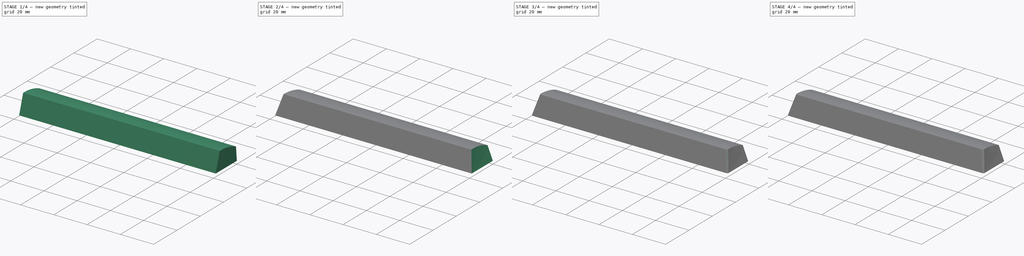
[diagram: build sequence overview — one tinted view per stage of 4, left to right]
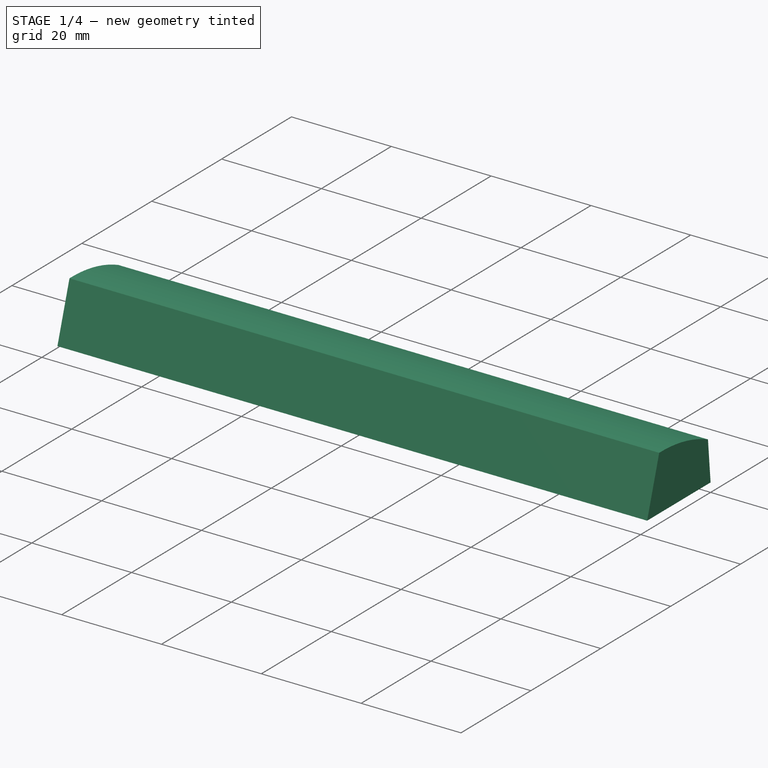
[diagram: stage 1 of 4 — iso view after this stage's code; geometry added in this stage tinted green]
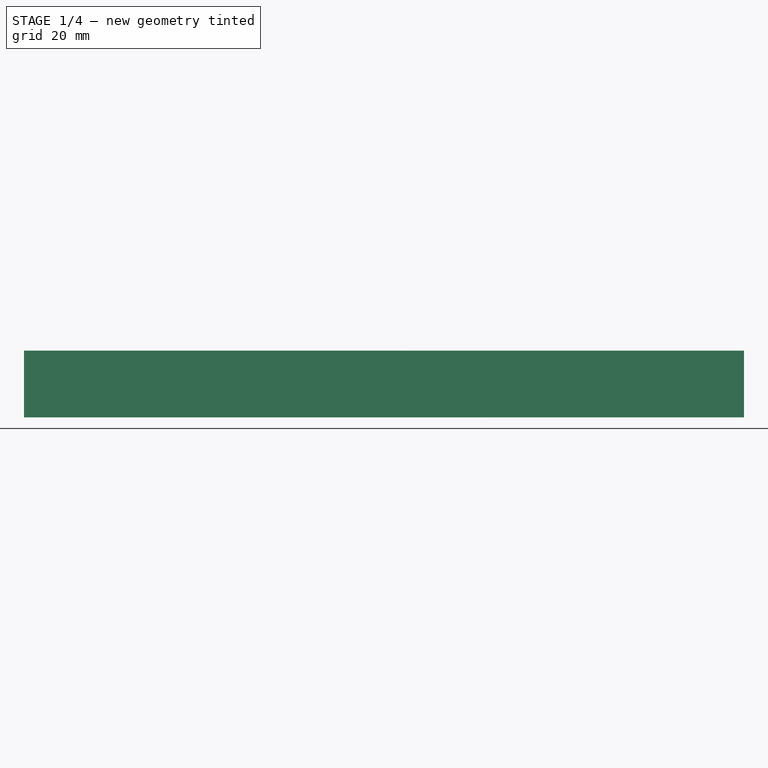
[diagram: stage 1 of 4 — front view after this stage's code; geometry added in this stage tinted green]
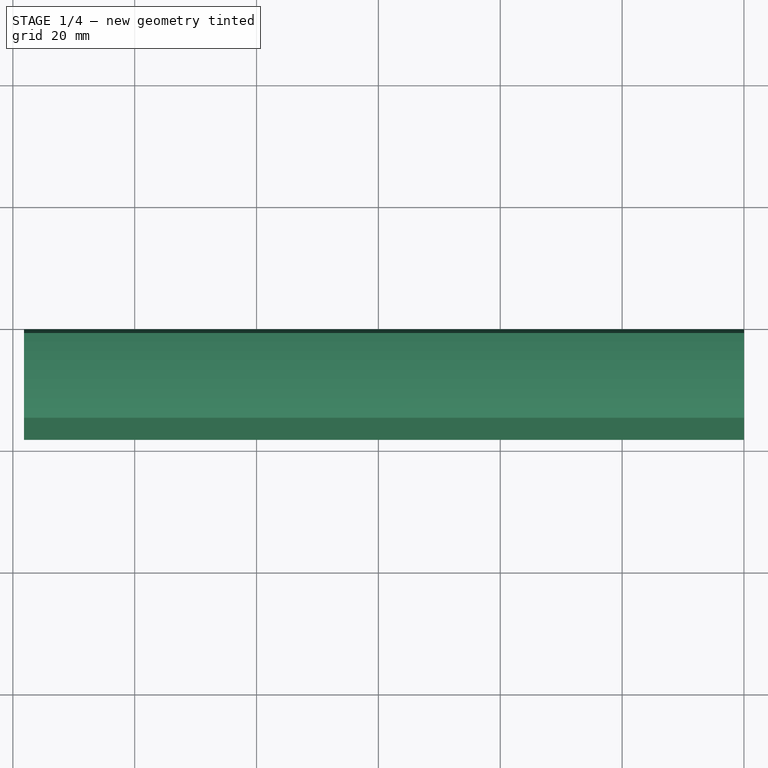
[diagram: stage 1 of 4 — top view after this stage's code; geometry added in this stage tinted green]
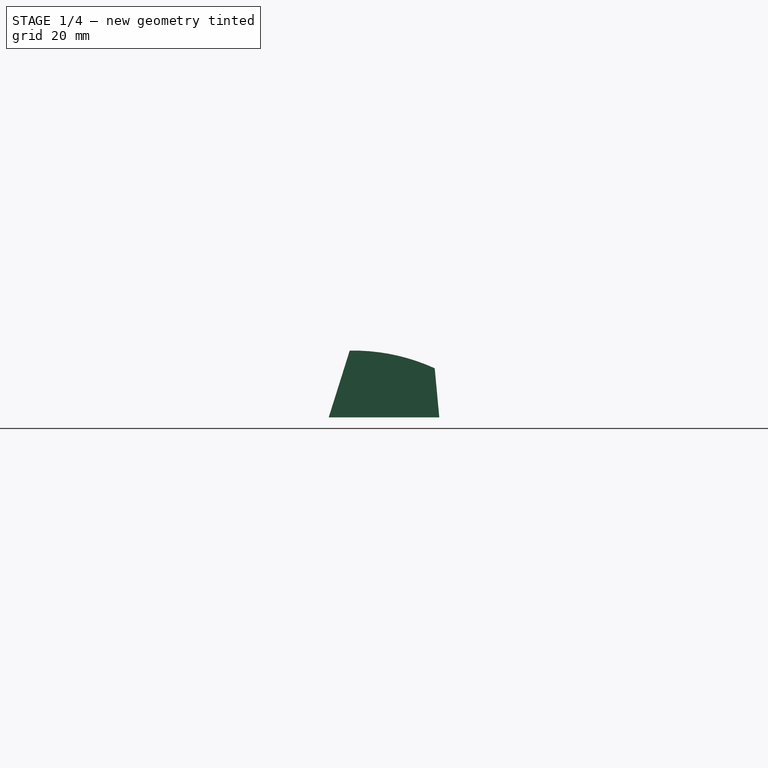
[diagram: stage 1 of 4 — right view after this stage's code; geometry added in this stage tinted green]
FCSTD DOCUMENT  (FreeCAD 1.1R20260325 (Git shallow))
Label: Caps-space-bar
License: Creative Commons Attribution 4.0
objects: Sketcher::SketchObject×7, PartDesign::Pad×5, Part::DatumPlane×5, Part::DatumLine×4, PartDesign::Fillet×2, App::Point×1, PartDesign::SubtractiveLoft×1, PartDesign::Thickness×1, PartDesign::Chamfer×1, PartDesign::Body×1
note: 45 computed .brp shape members not serialized (recipe doc carries the construction recipe); baked Part::Feature solids carry a one-line shape summary decoded from their .brp

FEATURE [App::Point] Origin001
  Role = Origin
FEATURE [Sketcher::SketchObject] Sketch
  ArcFitTolerance = 1e-06
  AttachmentSupport = -> [Origin]
  ExternalTypes = [0,0]
  FullyConstrained = true
  MakeInternals = false
  MapMode = 5
  Placement = pos=(0,0,0) rot=(0.57735,0.57735,0.57735;2.0944rad)
  _ExternalGeoVersion = 1
  sketch-geometry (4):
    g0: LineSegment StartX=0 StartY=0 StartZ=0 EndX=-0.75 EndY=8.0652 EndZ=0
    g1: LineSegment StartX=-0.75 StartY=8.0652 StartZ=0 EndX=-14.7007 EndY=10.9705 EndZ=0
    g2: LineSegment StartX=-14.7007 StartY=10.9705 StartZ=0 EndX=-18.15 EndY=0 EndZ=0
    g3: LineSegment StartX=-18.15 StartY=0 StartZ=0 EndX=0 EndY=0 EndZ=0
  constraints (11):
    c: Coincident(g-1,g0)
    c: Coincident(g0,g1)
    c: Coincident(g1,g2)
    c: PointOnObject(g2,g-1)
    c: Coincident(g2,g3)
    c: Coincident(g3,g0)
    c: Distance(g1,g1) = 14.25
    c: Distance(g2,g2) = 11.5
    c: DistanceX(g3,g3) = 18.15
    c: Distance(g0,g0) = 8.1
    c: DistanceX(g0,g0) = 0.75
FEATURE [PartDesign::Pad] Pad  label="Main pad"
  Direction = (1,0,0)
  Length = 118.162
  Length2 = 10
  Profile = -> Sketch
  ReferenceAxis = -> Sketch [N_Axis]
  Reversed = true
  SideType = 0
  Suppressed = false
  Type = 0
  Type2 = 0
  expr: Length = href(<<OEM>>.Widthmm)
FEATURE [Sketcher::SketchObject] Sketch002
  ArcFitTolerance = 1e-06
  AttachmentSupport = -> [Pad]
  ExternalGeometry = -> [Pad]
  ExternalTypes = [0,0]
  FullyConstrained = true
  MakeInternals = false
  MapMode = 5
  Placement = pos=(0,-16.5171,5.19327) rot=(1,0,0;1.26617rad)
  _ExternalGeoVersion = 1
  expr: Constraints[15] = href(<<OEM>>.Widthmm) - 2.65 mm * 2
  sketch-geometry (8):
    g0: LineSegment StartX=-118.162 StartY=-5.44392 StartZ=0 EndX=-115.052 EndY=8.05608 EndZ=0
    g1: LineSegment StartX=3.8e-15 StartY=-5.44392 StartZ=0 EndX=-3.11087 EndY=8.05608 EndZ=0
    g2: LineSegment StartX=-118.162 StartY=8.05608 StartZ=0 EndX=-115.052 EndY=8.05608 EndZ=0
    g3: LineSegment StartX=6.36e-14 StartY=8.05608 StartZ=0 EndX=-3.11087 EndY=8.05608 EndZ=0
    g4: GeomPoint [constr] X=-115.512 Y=6.05608 Z=0
    g5: GeomPoint [constr] X=-2.65 Y=6.05608 Z=0
    g6: LineSegment StartX=-118.162 StartY=-5.44392 StartZ=0 EndX=-118.162 EndY=8.05608 EndZ=0
    g7: LineSegment StartX=6.36e-14 StartY=8.05608 StartZ=0 EndX=3.8e-15 EndY=-5.44392 EndZ=0
  constraints (21):
    c: Coincident(g0,g-3)
    c: Coincident(g1,g-3)
    c: Horizontal(g0,g1)
    c: Horizontal(g2)
    c: PointOnObject(g3,g-2)
    c: Horizontal(g3)
    c: PointOnObject(g3,g1)
    c: Horizontal(g2,g3)
    c: DistanceY(g-4,g2) = 2
    c: Equal(g2,g3)
    c: Coincident(g0,g2)
    c: PointOnObject(g4,g0)
    c: PointOnObject(g5,g1)
    c: PointOnObject(g5,g-4)
    c: PointOnObject(g4,g-4)
    c: DistanceX(g4,g5) = 112.862
    c: Coincident(g6,g0)
    c: Coincident(g6,g2)
    c: Vertical(g6)
    c: Coincident(g7,g3)
    c: Coincident(g7,g1)
FEATURE [Sketcher::SketchObject] Sketch003
  ArcFitTolerance = 1e-06
  AttachmentSupport = -> [Pad]
  ExternalGeometry = -> [Pad]
  ExternalTypes = [0,0,0]
  FullyConstrained = true
  MakeInternals = false
  MapMode = 5
  Placement = pos=(0,0,0) rot=(0,0.673575,0.739119;3.14159rad)
  _ExternalGeoVersion = 1
  expr: Constraints[20] = href(<<OEM>>.Widthmm) - 2.65 mm * 2
  sketch-geometry (8):
    g0: LineSegment StartX=118.162 StartY=0 StartZ=0 EndX=114.858 EndY=10.1 EndZ=0
    g1: LineSegment StartX=118.162 StartY=10.1 StartZ=0 EndX=118.162 EndY=0 EndZ=0
    g2: LineSegment StartX=-2.69e-14 StartY=10.1 StartZ=0 EndX=-2.9e-15 EndY=0 EndZ=0
    g3: LineSegment StartX=-2.9e-15 StartY=0 StartZ=0 EndX=3.30432 EndY=10.1 EndZ=0
    g4: LineSegment StartX=118.162 StartY=10.1 StartZ=0 EndX=114.858 EndY=10.1 EndZ=0
    g5: LineSegment StartX=-2.69e-14 StartY=10.1 StartZ=0 EndX=3.30432 EndY=10.1 EndZ=0
    g6: GeomPoint [constr] X=2.65 Y=8.1 Z=0
    g7: GeomPoint [constr] X=115.512 Y=8.1 Z=0
  constraints (21):
    c: Coincident(g1,g0)
    c: Coincident(g2,g-1)
    c: Coincident(g2,g3)
    c: Vertical(g1)
    c: Horizontal(g4)
    c: PointOnObject(g5,g-2)
    c: Horizontal(g5)
    c: Horizontal(g5,g4)
    c: Coincident(g3,g5)
    c: Equal(g4,g5)
    c: Coincident(g2,g5)
    c: DistanceY(g-3,g2) = 2
    c: Coincident(g1,g4)
    c: PointOnObject(g-3,g1)
    c: Coincident(g0,g4)
    c: Horizontal(g0,g2)
    c: PointOnObject(g7,g0)
    c: PointOnObject(g6,g3)
    c: PointOnObject(g6,g-3)
    c: PointOnObject(g7,g-3)
    c: DistanceX(g6,g7) = 112.862
FEATURE [Part::DatumPlane] DatumPlane
  AttachmentOffset = pos=(0,0,6) rot=(0,0,1;0rad)
  AttachmentSupport = -> [Origin]
  MapMode = 5
  Placement = pos=(0,0,6) rot=(0,0,1;0rad)
FEATURE [Part::DatumPlane] DatumPlane004
  AttachmentOffset = pos=(0,0,-1.5) rot=(0,0,1;0rad)
  AttachmentSupport = -> [Pad]
  MapMode = 5
  Placement = pos=(0,-15.0862,4.74336) rot=(1,0,0;1.26617rad)
  expr: .AttachmentOffset.Base.z = -Thickness.Value
FEATURE [Part::DatumLine] DatumLine003
  AttacherType = Attacher::AttachEngineLine
  AttachmentSupport = -> [DatumPlane004,DatumPlane]
  MapMode = 30
  Placement = pos=(0,-14.6911,6) rot=(0.57735,-0.57735,-0.57735;2.0944rad)
FEATURE [Sketcher::SketchObject] Sketch009
  ArcFitTolerance = 1e-06
  AttachmentSupport = -> [Origin]
  ExternalGeometry = -> [Pad]
  ExternalTypes = [0,0,0]
  FullyConstrained = true
  MakeInternals = false
  MapMode = 5
  Placement = pos=(0,0,0) rot=(0.57735,0.57735,0.57735;2.0944rad)
  _ExternalGeoVersion = 1
  sketch-geometry (5):
    g0: GeomPoint [constr] X=-7.72534 Y=9.51786 Z=0
    g1: GeomPoint [constr] X=-9.075 Y=0 Z=0
    g2: LineSegment [constr] StartX=-7.72534 StartY=9.51786 StartZ=0 EndX=-9.075 EndY=0 EndZ=0
    g3: ArcOfCircle CenterX=-14.1259 CenterY=-21.2164 CenterZ=0 NormalX=0 NormalY=0 NormalZ=1 AngleXU=0 Radius=32.1921 StartAngle=1.1423 EndAngle=1.58865
    g4: GeomPoint [constr] X=-7.61302 Y=10.3099 Z=0
  constraints (9):
    c: Symmetric(g-3,g-4,g0)
    c: Symmetric(g-4,g-3,g1)
    c: Coincident(g2,g0)
    c: Coincident(g2,g1)
    c: Coincident(g3,g-3)
    c: Coincident(g3,g-4)
    c: PointOnObject(g4,g3)
    c: PointOnObject(g4,g2)
    c: Distance(g0,g4) = 0.8
FEATURE [PartDesign::Pad] Pad005  label="Top curvature"
  BaseFeature = -> Pad
  Direction = (1,0,0)
  Length = 10
  Length2 = 10
  Profile = -> Sketch009
  ReferenceAxis = -> Sketch009 [N_Axis]
  Refine = true
  SideType = 0
  Suppressed = false
  Type = 3
  Type2 = 0
  UpToFace = -> Pad [Face6]
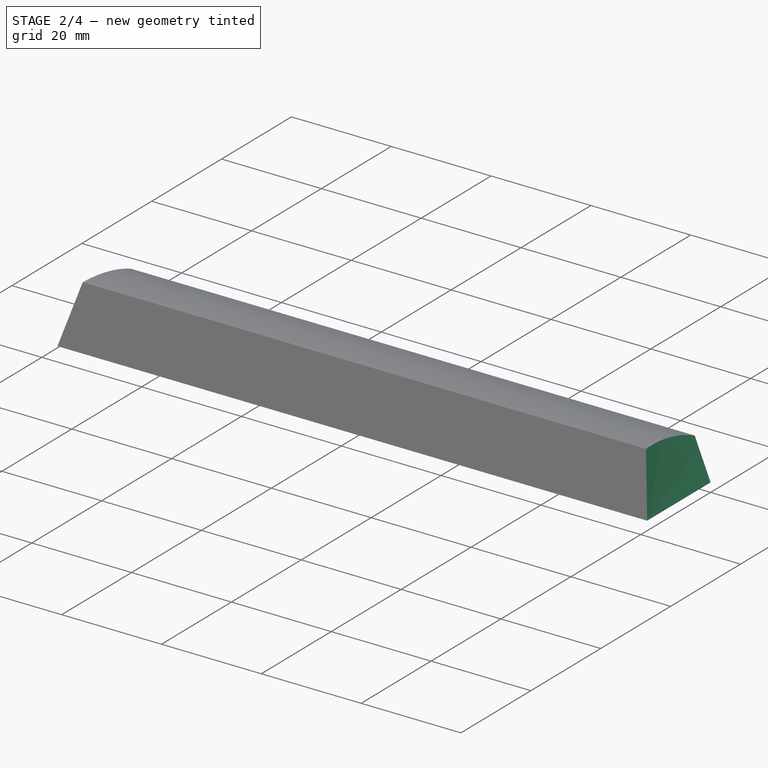
[diagram: stage 2 of 4 — iso view after this stage's code; geometry added in this stage tinted green]
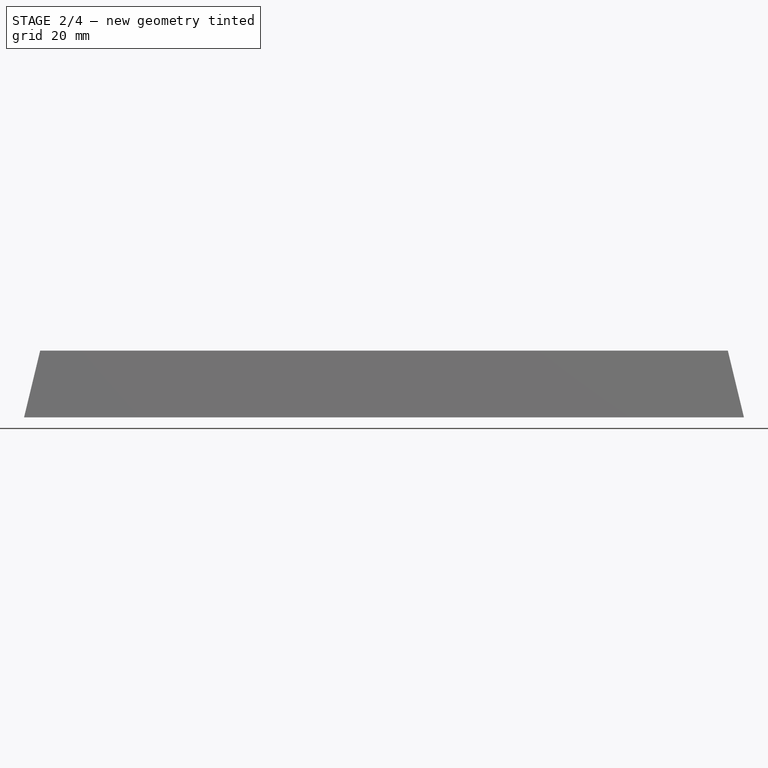
[diagram: stage 2 of 4 — front view after this stage's code; geometry added in this stage tinted green]
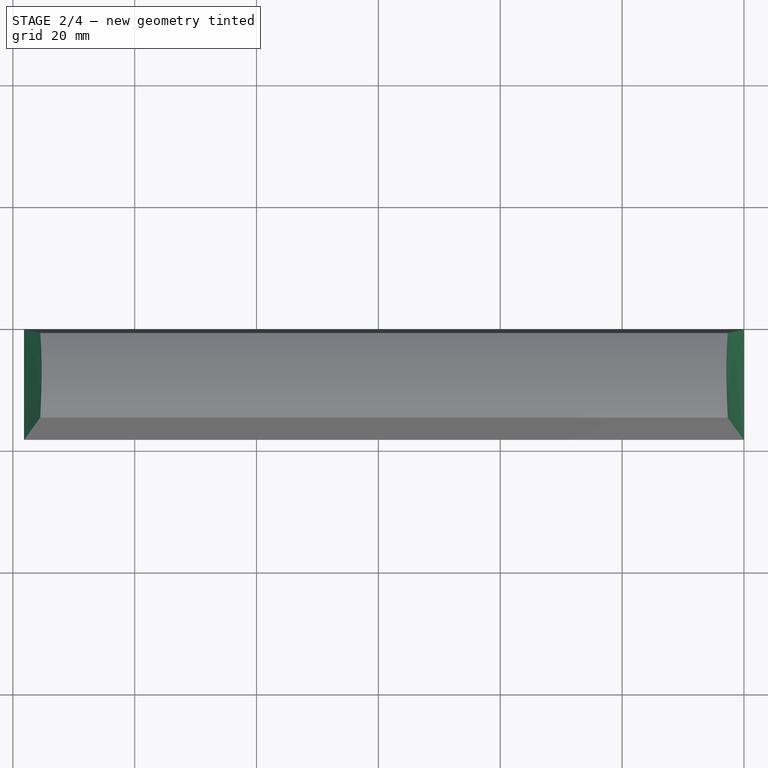
[diagram: stage 2 of 4 — top view after this stage's code; geometry added in this stage tinted green]
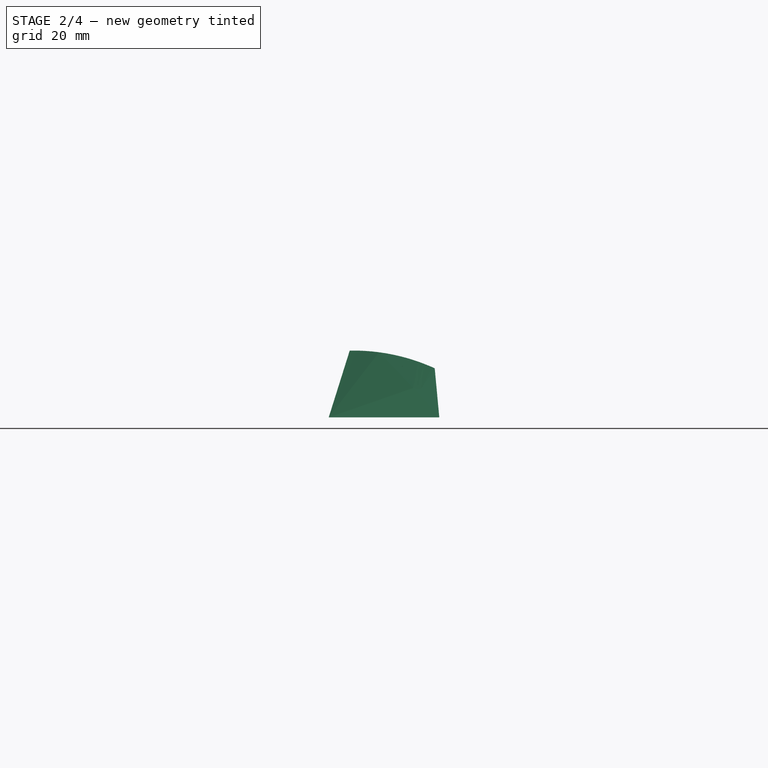
[diagram: stage 2 of 4 — right view after this stage's code; geometry added in this stage tinted green]
FEATURE [PartDesign::SubtractiveLoft] SubtractiveLoft  label="Sides"
  BaseFeature = -> Pad005
  Closed = false
  Profile = -> Sketch002
  Refine = true
  Ruled = false
  Sections = -> [Sketch003]
  Suppressed = false
FEATURE [Part::DatumPlane] DatumPlane001
  AttachmentOffset = pos=(0,0,-1.5) rot=(0,0,1;0rad)
  AttachmentSupport = -> [SubtractiveLoft]
  MapMode = 5
  Placement = pos=(0,-1.49356,-0.138889) rot=(0,0.673575,0.739119;3.14159rad)
  expr: .AttachmentOffset.Base.z = -Thickness.Value
FEATURE [Part::DatumLine] DatumLine
  AttacherType = Attacher::AttachEngineLine
  AttachmentSupport = -> [DatumPlane001,DatumPlane]
  MapMode = 30
  Placement = pos=(0,-2.06442,6) rot=(0.57735,0.57735,0.57735;2.0944rad)
FEATURE [Part::DatumPlane] DatumPlane002
  AttachmentOffset = pos=(0,0,1.5) rot=(0,0,1;0rad)
  AttachmentSupport = -> [SubtractiveLoft]
  MapMode = 45
  Placement = pos=(-115.368,-8.82641,4.46297) rot=(0.794576,0.005128,0.607143;3.10539rad)
  expr: .AttachmentOffset.Base.z = Thickness.Value
FEATURE [Part::DatumLine] DatumLine001
  AttacherType = Attacher::AttachEngineLine
  AttachmentSupport = -> [DatumPlane,DatumPlane002]
  MapMode = 30
  Placement = pos=(-114.682,2.6793,6) rot=(0.008259,0.707083,0.707083;3.12508rad)
FEATURE [Part::DatumPlane] DatumPlane003
  AttachmentOffset = pos=(0,0,-1.5) rot=(0,0,1;0rad)
  AttachmentSupport = -> [SubtractiveLoft]
  MapMode = 45
  Placement = pos=(-2.79417,-8.82641,4.46297) rot=(0.607052,0.018103,0.794456;3.13134rad)
  expr: .AttachmentOffset.Base.z = -Thickness.Value
FEATURE [Part::DatumLine] DatumLine002
  AttacherType = Attacher::AttachEngineLine
  AttachmentSupport = -> [DatumPlane003,DatumPlane]
  MapMode = 30
  Placement = pos=(-3.21191,-8.83617,6) rot=(0.999864,0.011678,0.011678;1.57093rad)
FEATURE [PartDesign::Thickness] Thickness
  Base = -> SubtractiveLoft [Face5]
  BaseFeature = -> SubtractiveLoft
  Intersection = false
  Join = 0
  Mode = 0
  Reversed = true
  SupportTransform = false
  Suppressed = false
  Value = 1.5
FEATURE [Sketcher::SketchObject] Sketch004
  ArcFitTolerance = 1e-06
  AttachmentOffset = pos=(0,0,1.3) rot=(0,0,1;0rad)
  AttachmentSupport = -> [Origin]
  ExternalTypes = [0]
  FullyConstrained = true
  MakeInternals = false
  MapMode = 5
  Placement = pos=(0,0,1.3) rot=(0,0,1;0rad)
  _ExternalGeoVersion = 1
  expr: Constraints[2] = href(<<OEM>>.Widthmm) / 2
  sketch-geometry (39):
    g0: Circle CenterX=-59.0812 CenterY=-9 CenterZ=0 NormalX=0 NormalY=0 NormalZ=1 AngleXU=0 Radius=2.8
    g1: LineSegment StartX=-59.6812 StartY=-6.85 StartZ=0 EndX=-58.4812 EndY=-6.85 EndZ=0
    g2: LineSegment StartX=-58.4812 StartY=-6.85 StartZ=0 EndX=-58.4812 EndY=-8.4 EndZ=0
    g3: LineSegment StartX=-58.4812 StartY=-8.4 StartZ=0 EndX=-56.9312 EndY=-8.4 EndZ=0
    g4: LineSegment StartX=-56.9312 StartY=-8.4 StartZ=0 EndX=-56.9312 EndY=-9.6 EndZ=0
    g5: LineSegment StartX=-56.9312 StartY=-9.6 StartZ=0 EndX=-58.4812 EndY=-9.6 EndZ=0
    g6: LineSegment StartX=-58.4812 StartY=-9.6 StartZ=0 EndX=-58.4812 EndY=-11.15 EndZ=0
    g7: LineSegment StartX=-58.4812 StartY=-11.15 StartZ=0 EndX=-59.6812 EndY=-11.15 EndZ=0
    g8: LineSegment StartX=-59.6812 StartY=-11.15 StartZ=0 EndX=-59.6812 EndY=-9.6 EndZ=0
    g9: LineSegment StartX=-59.6812 StartY=-9.6 StartZ=0 EndX=-61.2312 EndY=-9.6 EndZ=0
    g10: LineSegment StartX=-61.2312 StartY=-9.6 StartZ=0 EndX=-61.2312 EndY=-8.4 EndZ=0
    g11: LineSegment StartX=-61.2312 StartY=-8.4 StartZ=0 EndX=-59.6812 EndY=-8.4 EndZ=0
    g12: LineSegment StartX=-59.6812 StartY=-8.4 StartZ=0 EndX=-59.6812 EndY=-6.85 EndZ=0
    g13: Circle CenterX=-9.08125 CenterY=-9 CenterZ=0 NormalX=0 NormalY=0 NormalZ=1 AngleXU=0 Radius=2.8
    g14: Circle CenterX=-109.081 CenterY=-9 CenterZ=0 NormalX=0 NormalY=0 NormalZ=1 AngleXU=0 Radius=2.8
    g15: LineSegment StartX=-9.68125 StartY=-6.85 StartZ=0 EndX=-8.48125 EndY=-6.85 EndZ=0
    g16: LineSegment StartX=-8.48125 StartY=-6.85 StartZ=0 EndX=-8.48125 EndY=-8.4 EndZ=0
    g17: LineSegment StartX=-8.48125 StartY=-8.4 StartZ=0 EndX=-6.93125 EndY=-8.4 EndZ=0
    g18: LineSegment StartX=-6.93125 StartY=-8.4 StartZ=0 EndX=-6.93125 EndY=-9.6 EndZ=0
    g19: LineSegment StartX=-6.93125 StartY=-9.6 StartZ=0 EndX=-8.48125 EndY=-9.6 EndZ=0
    g20: LineSegment StartX=-8.48125 StartY=-9.6 StartZ=0 EndX=-8.48125 EndY=-11.15 EndZ=0
    g21: LineSegment StartX=-8.48125 StartY=-11.15 StartZ=0 EndX=-9.68125 EndY=-11.15 EndZ=0
    g22: LineSegment StartX=-9.68125 StartY=-11.15 StartZ=0 EndX=-9.68125 EndY=-9.6 EndZ=0
    g23: LineSegment StartX=-9.68125 StartY=-9.6 StartZ=0 EndX=-11.2312 EndY=-9.6 EndZ=0
    g24: LineSegment StartX=-11.2312 StartY=-9.6 StartZ=0 EndX=-11.2312 EndY=-8.4 EndZ=0
    g25: LineSegment StartX=-11.2312 StartY=-8.4 StartZ=0 EndX=-9.68125 EndY=-8.4 EndZ=0
    g26: LineSegment StartX=-9.68125 StartY=-8.4 StartZ=0 EndX=-9.68125 EndY=-6.85 EndZ=0
    g27: LineSegment StartX=-109.681 StartY=-6.85 StartZ=0 EndX=-108.481 EndY=-6.85 EndZ=0
    g28: LineSegment StartX=-108.481 StartY=-6.85 StartZ=0 EndX=-108.481 EndY=-8.4 EndZ=0
    g29: LineSegment StartX=-108.481 StartY=-8.4 StartZ=0 EndX=-106.931 EndY=-8.4 EndZ=0
    g30: LineSegment StartX=-106.931 StartY=-8.4 StartZ=0 EndX=-106.931 EndY=-9.6 EndZ=0
    g31: LineSegment StartX=-106.931 StartY=-9.6 StartZ=0 EndX=-108.481 EndY=-9.6 EndZ=0
    g32: LineSegment StartX=-108.481 StartY=-9.6 StartZ=0 EndX=-108.481 EndY=-11.15 EndZ=0
    g33: LineSegment StartX=-108.481 StartY=-11.15 StartZ=0 EndX=-109.681 EndY=-11.15 EndZ=0
    g34: LineSegment StartX=-109.681 StartY=-11.15 StartZ=0 EndX=-109.681 EndY=-9.6 EndZ=0
    g35: LineSegment StartX=-109.681 StartY=-9.6 StartZ=0 EndX=-111.231 EndY=-9.6 EndZ=0
    g36: LineSegment StartX=-111.231 StartY=-9.6 StartZ=0 EndX=-111.231 EndY=-8.4 EndZ=0
    g37: LineSegment StartX=-111.231 StartY=-8.4 StartZ=0 EndX=-109.681 EndY=-8.4 EndZ=0
    g38: LineSegment StartX=-109.681 StartY=-8.4 StartZ=0 EndX=-109.681 EndY=-6.85 EndZ=0
  constraints (113):
    c: Diameter(g0) = 5.6
    c: DistanceY(g0,g-1) = 9
    c: DistanceX(g0,g-1) = 59.0812
    c: Horizontal(g1)
    c: Coincident(g1,g2)
    c: Vertical(g2)
    c: Coincident(g2,g3)
    c: Horizontal(g3)
    c: Coincident(g3,g4)
    c: Vertical(g4)
    c: Coincident(g4,g5)
    c: Horizontal(g5)
    c: Coincident(g5,g6)
    c: Vertical(g6)
    c: Coincident(g6,g7)
    c: Horizontal(g7)
    c: Coincident(g7,g8)
    c: Vertical(g8)
    c: Coincident(g8,g9)
    c: Horizontal(g9)
    c: Coincident(g9,g10)
    c: Vertical(g10)
    c: Coincident(g10,g11)
    c: Horizontal(g11)
    c: Coincident(g11,g12)
    c: Coincident(g12,g1)
    c: Vertical(g12)
    c: Vertical(g11,g8)
    c: Vertical(g2,g5)
    c: Horizontal(g11,g2)
    c: Horizontal(g8,g5)
    c: DistanceY(g4,g4) = 1.2
    c: DistanceX(g1,g1) = 1.2
    c: Equal(g2,g3)
    c: Equal(g3,g9)
    c: Equal(g9,g8)
    c: Symmetric(g8,g2,g0)
    c: DistanceY(g6,g1) = 4.3
    c: Equal(g0,g13)
    c: Horizontal(g0,g13)
    c: DistanceX(g0,g13) = 50
    c: Equal(g0,g14)
    c: Symmetric(g14,g13,g0)
    c: Horizontal(g15)
    c: Horizontal(g27)
    c: Coincident(g15,g16)
    c: Coincident(g27,g28)
    c: Vertical(g16)
    c: Vertical(g28)
    c: Coincident(g16,g17)
    c: Coincident(g28,g29)
    c: Horizontal(g17)
    c: Horizontal(g29)
    c: Coincident(g17,g18)
    c: Coincident(g29,g30)
    c: Vertical(g18)
    c: Vertical(g30)
    c: Coincident(g18,g19)
    c: Coincident(g30,g31)
    c: Horizontal(g19)
    c: Horizontal(g31)
    c: Coincident(g19,g20)
    c: Coincident(g31,g32)
    c: Vertical(g20)
    c: Vertical(g32)
    c: Coincident(g20,g21)
    c: Coincident(g32,g33)
    c: Horizontal(g21)
    c: Horizontal(g33)
    c: Coincident(g21,g22)
    c: Coincident(g33,g34)
    c: Vertical(g22)
    c: Vertical(g34)
    c: Coincident(g22,g23)
    c: Coincident(g34,g35)
    c: Horizontal(g23)
    c: Horizontal(g35)
    c: Coincident(g23,g24)
    c: Coincident(g35,g36)
    c: Vertical(g24)
    c: Vertical(g36)
    c: Coincident(g24,g25)
    c: Coincident(g36,g37)
    c: Horizontal(g25)
    c: Horizontal(g37)
    c: Coincident(g25,g26)
    c: Coincident(g37,g38)
    c: Coincident(g26,g15)
    c: Coincident(g38,g27)
    c: Vertical(g26)
    c: Vertical(g38)
    c: Vertical(g25,g22)
    c: Vertical(g37,g34)
    c: Vertical(g16,g19)
    c: Vertical(g28,g31)
    c: Horizontal(g25,g16)
    c: Horizontal(g37,g28)
    c: Horizontal(g22,g19)
    c: Horizontal(g34,g31)
    c: Equal(g4,g18)
    c: Equal(g4,g30)
    c: Equal(g1,g15)
    c: Equal(g1,g27)
    c: Equal(g16,g17)
    c: Equal(g28,g29)
    c: Equal(g17,g23)
    c: Equal(g29,g35)
    c: Equal(g23,g22)
    c: Equal(g35,g34)
    c: DistanceY(g20,g15) = 4.3
    c: DistanceY(g32,g27) = 4.3
    c: Symmetric(g22,g16,g13)
    c: Symmetric(g34,g28,g14)
FEATURE [PartDesign::Pad] Pad001  label="Stem"
  BaseFeature = -> Thickness
  Direction = (0,0,1)
  Length = 10
  Length2 = 10
  Profile = -> Sketch004
  ReferenceAxis = -> Sketch004 [N_Axis]
  Refine = true
  SideType = 0
  Suppressed = false
  Type = 3
  Type2 = 0
  UpToFace = -> Pad [Face2]
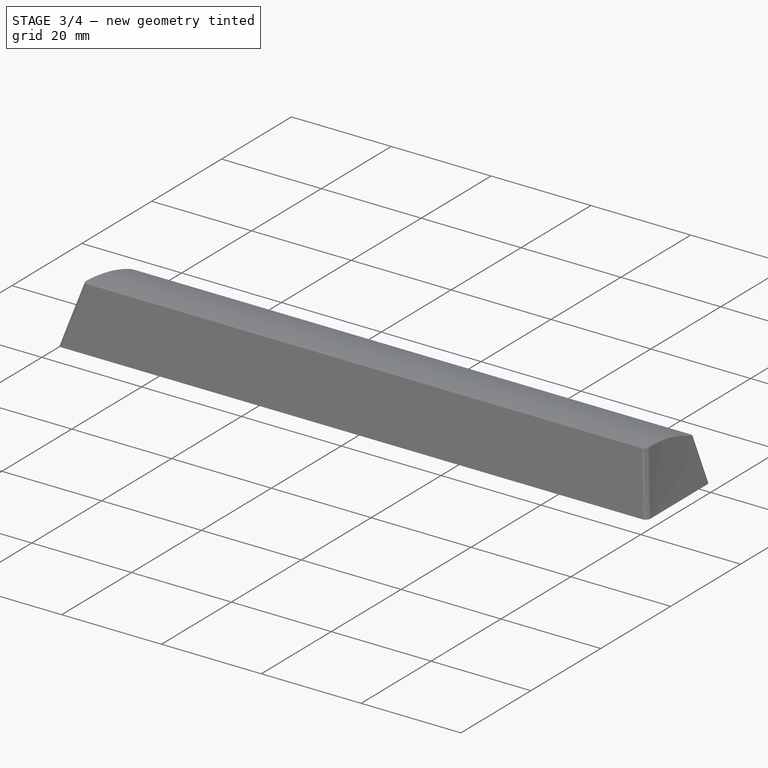
[diagram: stage 3 of 4 — iso view after this stage's code; geometry added in this stage tinted green]
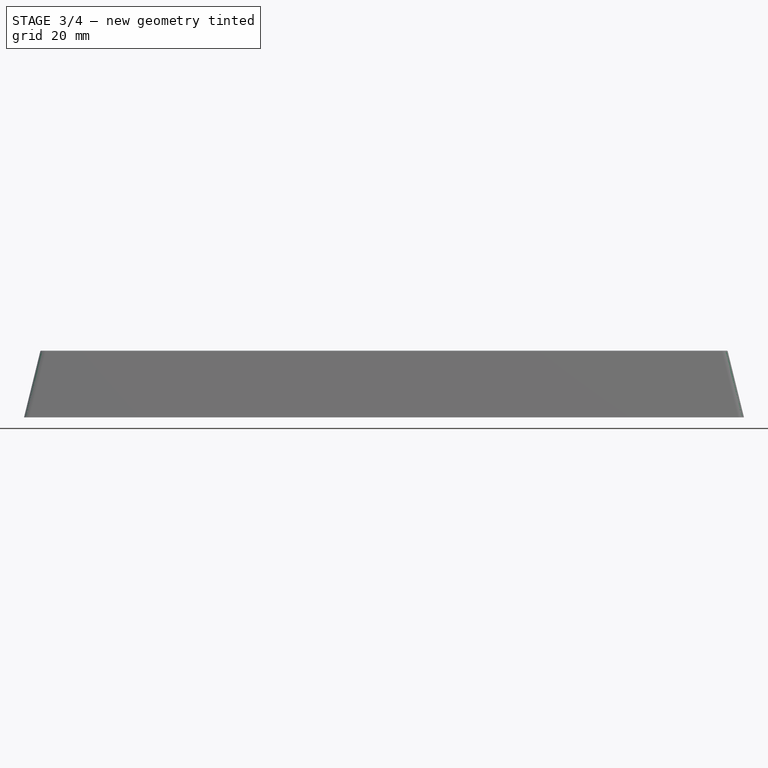
[diagram: stage 3 of 4 — front view after this stage's code; geometry added in this stage tinted green]
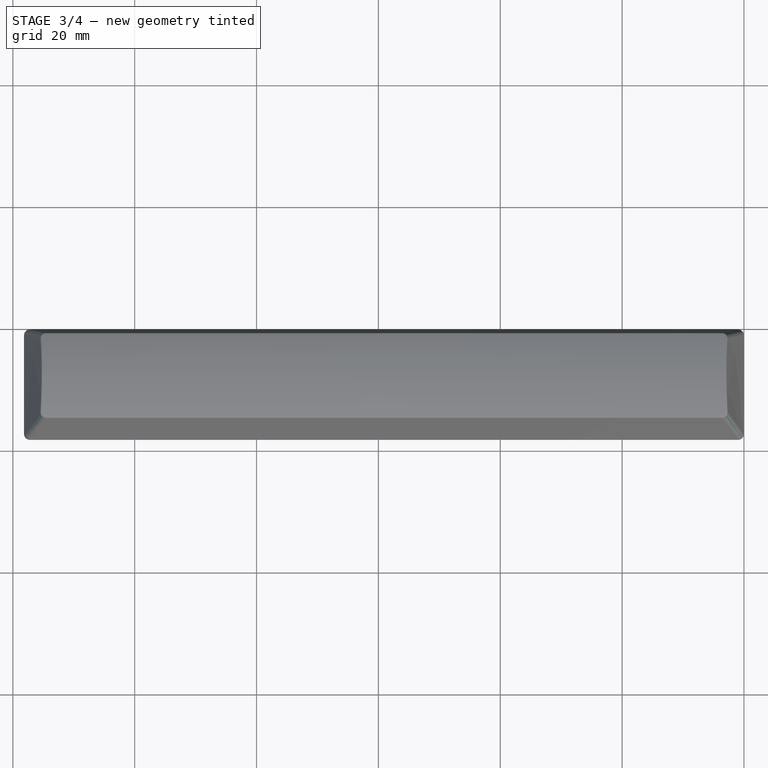
[diagram: stage 3 of 4 — top view after this stage's code; geometry added in this stage tinted green]
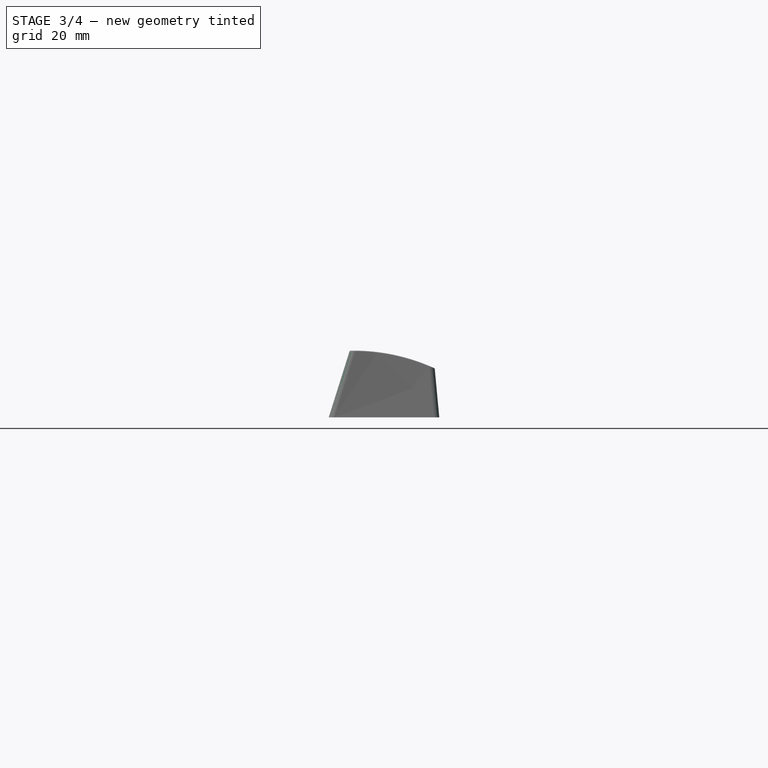
[diagram: stage 3 of 4 — right view after this stage's code; geometry added in this stage tinted green]
FEATURE [PartDesign::Fillet] Fillet  label="External side fillets"
  Base = -> Pad001 [Edge11,Edge3,Edge7,Edge1]
  BaseFeature = -> Pad001
  Radius = 1
  SupportTransform = false
  Suppressed = false
  UseAllEdges = false
FEATURE [PartDesign::Fillet] Fillet002  label="Top fillet"
  Base = -> Fillet [Edge8]
  BaseFeature = -> Fillet
  Radius = 0.2
  SupportTransform = false
  Suppressed = false
  UseAllEdges = false
FEATURE [PartDesign::Chamfer] Chamfer  label="Stem chamfer"
  Angle = 45
  Base = -> Fillet002 [Edge77,Edge74,Edge83,Edge80,Edge89,Edge86,Edge95,Edge92,Edge65,Edge62,Edge71,Edge68,Edge67,Edge66,Edge64,Edge63,Edge73,Edge72,Edge70,Edge69,Edge76,Edge75,Edge85,Edge84,Edge82,Edge81,Edge79,Edge78,Edge88,Edge87,Edge97,Edge96,Edge94,Edge93,Edge91,Edge90]
  BaseFeature = -> Fillet002
  ChamferType = 0
  FlipDirection = false
  Size = 0.4
  Size2 = 1
  SupportTransform = false
  Suppressed = false
  UseAllEdges = false
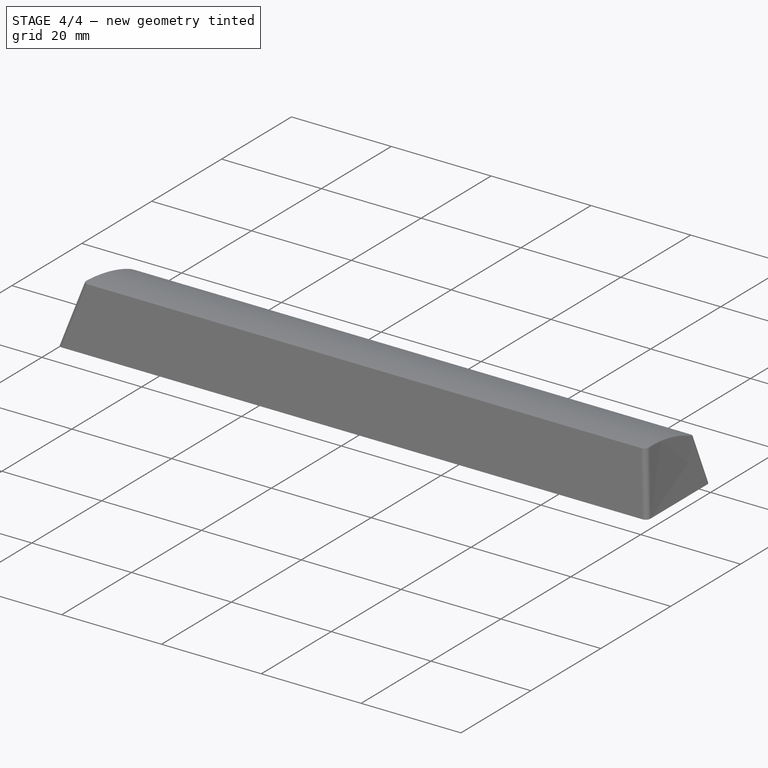
[diagram: stage 4 of 4 — iso view after this stage's code; geometry added in this stage tinted green]
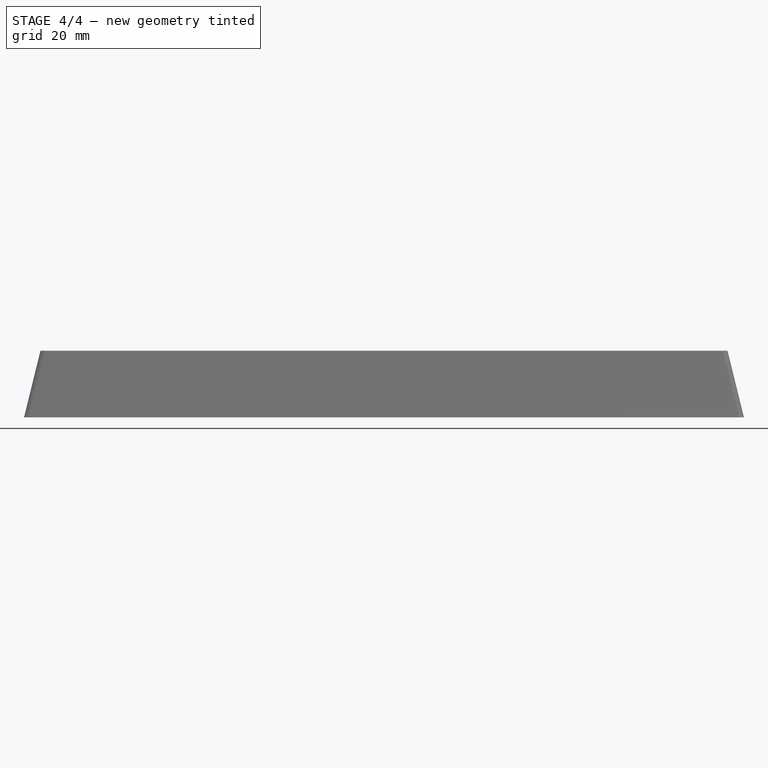
[diagram: stage 4 of 4 — front view after this stage's code; geometry added in this stage tinted green]
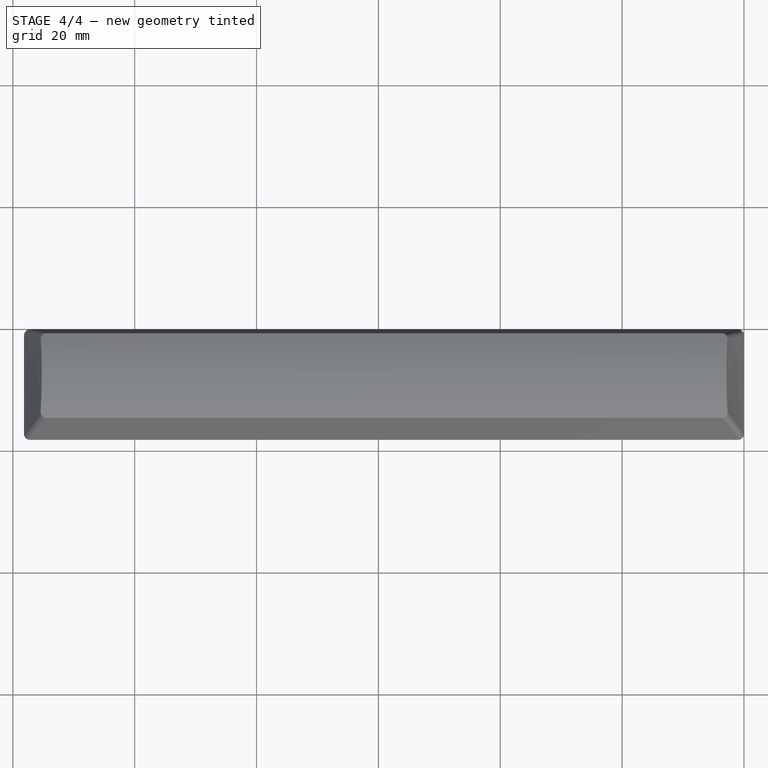
[diagram: stage 4 of 4 — top view after this stage's code; geometry added in this stage tinted green]
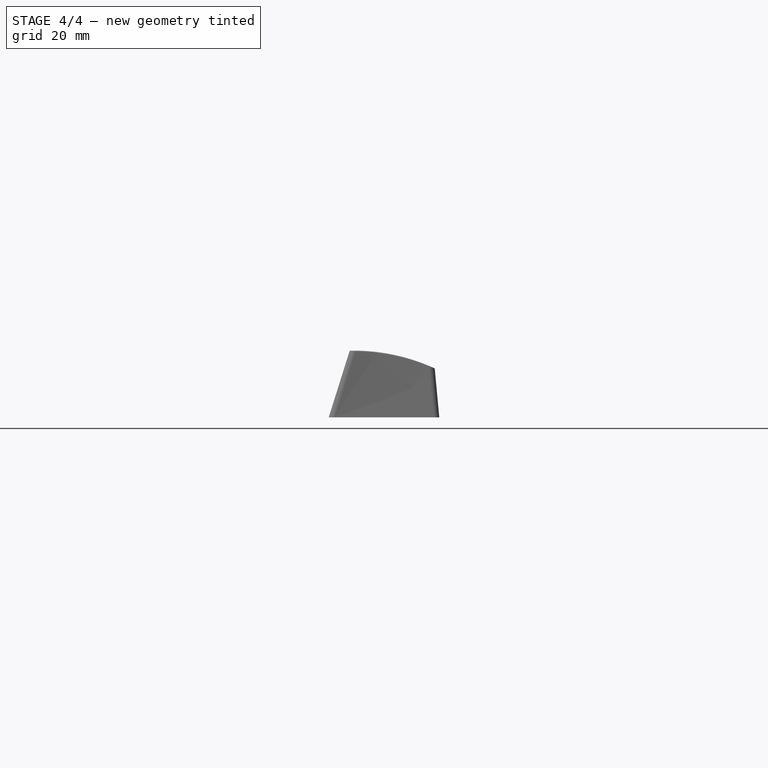
[diagram: stage 4 of 4 — right view after this stage's code; geometry added in this stage tinted green]
FEATURE [Sketcher::SketchObject] Sketch010
  ArcFitTolerance = 1e-06
  AttachmentOffset = pos=(0,0,6) rot=(0,0,1;0rad)
  AttachmentSupport = -> [Origin]
  ExternalGeometry = -> [Pad001,DatumLine001,DatumLine002]
  ExternalTypes = [0,0,0,0,0]
  FullyConstrained = true
  MakeInternals = false
  MapMode = 5
  Placement = pos=(0,0,6) rot=(0,0,1;0rad)
  _ExternalGeoVersion = 1
  sketch-geometry (9):
    g0: LineSegment StartX=-114.968 StartY=-9.6 StartZ=0 EndX=-114.94 EndY=-8.4 EndZ=0
    g1: LineSegment StartX=-114.94 StartY=-8.4 StartZ=0 EndX=-3.2221 EndY=-8.4 EndZ=0
    g2: LineSegment StartX=-3.2221 StartY=-8.4 StartZ=0 EndX=-3.19407 EndY=-9.6 EndZ=0
    g3: LineSegment StartX=-3.19407 StartY=-9.6 StartZ=0 EndX=-114.968 EndY=-9.6 EndZ=0
    g4: LineSegment StartX=-114.877 StartY=-5.7 StartZ=0 EndX=-114.901 EndY=-6.7 EndZ=0
    g5: LineSegment StartX=-114.901 StartY=-6.7 StartZ=0 EndX=-3.26182 EndY=-6.7 EndZ=0
    g6: LineSegment StartX=-3.26182 StartY=-6.7 StartZ=0 EndX=-3.28518 EndY=-5.7 EndZ=0
    g7: LineSegment StartX=-3.28518 StartY=-5.7 StartZ=0 EndX=-114.877 EndY=-5.7 EndZ=0
    g8: GeomPoint [constr] X=-114.954 Y=-9 Z=0
  constraints (25):
    c: DistanceY(g0,g0) = 1.2
    c: PointOnObject(g0,g-6)
    c: PointOnObject(g0,g-6)
    c: Horizontal(g1)
    c: Coincident(g1,g2)
    c: Coincident(g2,g3)
    c: Horizontal(g3)
    c: PointOnObject(g1,g-7)
    c: PointOnObject(g2,g-7)
    c: Coincident(g4,g5)
    c: Horizontal(g5)
    c: Coincident(g5,g6)
    c: Coincident(g6,g7)
    c: Coincident(g7,g4)
    c: Horizontal(g7)
    c: PointOnObject(g5,g-7)
    c: PointOnObject(g6,g-7)
    c: DistanceY(g4,g4) = 1
    c: PointOnObject(g4,g-6)
    c: PointOnObject(g4,g-6)
    c: DistanceY(g0,g4) = 1.7
    c: Coincident(g1,g0)
    c: Coincident(g3,g0)
    c: Symmetric(g0,g0,g8)
    c: Horizontal(g8,g-5)
FEATURE [PartDesign::Pad] Pad006  label="Longitudinal reinforcement"
  BaseFeature = -> Chamfer
  Direction = (0,0,1)
  Length = 10
  Length2 = 10
  Profile = -> Sketch010
  ReferenceAxis = -> Sketch010 [N_Axis]
  Refine = true
  SideType = 0
  Suppressed = false
  Type = 3
  Type2 = 0
  UpToFace = -> Pad [Face2]
FEATURE [Sketcher::SketchObject] Sketch011
  ArcFitTolerance = 1e-06
  AttachmentOffset = pos=(0,0,6) rot=(0,0,1;0rad)
  AttachmentSupport = -> [Origin]
  ExternalGeometry = -> [DatumLine,DatumLine003,Pad001]
  ExternalTypes = [0,0,0,0,0]
  FullyConstrained = true
  MakeInternals = false
  MapMode = 5
  Placement = pos=(0,0,6) rot=(0,0,1;0rad)
  _ExternalGeoVersion = 1
  sketch-geometry (55):
    g0: LineSegment StartX=-108.481 StartY=-2.06442 StartZ=0 EndX=-109.681 EndY=-2.06442 EndZ=0
    g1: LineSegment StartX=-109.681 StartY=-2.06442 StartZ=0 EndX=-109.681 EndY=-14.6911 EndZ=0
    g2: LineSegment StartX=-109.681 StartY=-14.6911 StartZ=0 EndX=-108.481 EndY=-14.6911 EndZ=0
    g3: LineSegment StartX=-108.481 StartY=-14.6911 StartZ=0 EndX=-108.481 EndY=-2.06442 EndZ=0
    g4: GeomPoint [constr] X=-109.081 Y=-2.06442 Z=0
    g5: LineSegment StartX=-113.481 StartY=-2.06442 StartZ=0 EndX=-114.681 EndY=-2.06442 EndZ=0
    g6: LineSegment StartX=-113.481 StartY=-14.6911 StartZ=0 EndX=-113.481 EndY=-2.06442 EndZ=0
    g7: LineSegment StartX=-114.681 StartY=-14.6911 StartZ=0 EndX=-113.481 EndY=-14.6911 EndZ=0
    g8: LineSegment StartX=-114.681 StartY=-2.06442 StartZ=0 EndX=-114.681 EndY=-14.6911 EndZ=0
    g9: LineSegment StartX=-98.5812 StartY=-2.06442 StartZ=0 EndX=-99.7812 EndY=-2.06442 EndZ=0
    g10: LineSegment StartX=-98.5812 StartY=-14.6911 StartZ=0 EndX=-98.5812 EndY=-2.06442 EndZ=0
    g11: LineSegment StartX=-99.7812 StartY=-14.6911 StartZ=0 EndX=-98.5812 EndY=-14.6911 EndZ=0
    g12: LineSegment StartX=-99.7812 StartY=-2.06442 StartZ=0 EndX=-99.7812 EndY=-14.6911 EndZ=0
    g13: LineSegment StartX=-17.1312 StartY=-2.06442 StartZ=0 EndX=-15.9312 EndY=-2.06442 EndZ=0
    g14: LineSegment StartX=-17.1312 StartY=-14.6911 StartZ=0 EndX=-17.1312 EndY=-2.06442 EndZ=0
    g15: LineSegment StartX=-15.9312 StartY=-14.6911 StartZ=0 EndX=-17.1312 EndY=-14.6911 EndZ=0
    g16: LineSegment StartX=-15.9312 StartY=-2.06442 StartZ=0 EndX=-15.9312 EndY=-14.6911 EndZ=0
    g17: LineSegment StartX=-88.6812 StartY=-2.06442 StartZ=0 EndX=-89.8812 EndY=-2.06442 EndZ=0
    g18: LineSegment StartX=-88.6812 StartY=-14.6911 StartZ=0 EndX=-88.6812 EndY=-2.06442 EndZ=0
    g19: LineSegment StartX=-89.8812 StartY=-14.6911 StartZ=0 EndX=-88.6812 EndY=-14.6911 EndZ=0
    g20: LineSegment StartX=-89.8812 StartY=-2.06442 StartZ=0 EndX=-89.8812 EndY=-14.6911 EndZ=0
    g21: LineSegment StartX=-36.9312 StartY=-2.06442 StartZ=0 EndX=-38.1312 EndY=-2.06442 EndZ=0
    g22: LineSegment StartX=-36.9312 StartY=-14.6911 StartZ=0 EndX=-36.9312 EndY=-2.06442 EndZ=0
    g23: LineSegment StartX=-38.1312 StartY=-14.6911 StartZ=0 EndX=-36.9312 EndY=-14.6911 EndZ=0
    g24: LineSegment StartX=-38.1312 StartY=-2.06442 StartZ=0 EndX=-38.1312 EndY=-14.6911 EndZ=0
    g25: LineSegment StartX=-78.7812 StartY=-2.06442 StartZ=0 EndX=-79.9813 EndY=-2.06442 EndZ=0
    g26: LineSegment StartX=-78.7812 StartY=-14.6911 StartZ=0 EndX=-78.7812 EndY=-2.06442 EndZ=0
    g27: LineSegment StartX=-79.9813 StartY=-14.6911 StartZ=0 EndX=-78.7812 EndY=-14.6911 EndZ=0
    g28: LineSegment StartX=-79.9813 StartY=-2.06442 StartZ=0 EndX=-79.9813 EndY=-14.6911 EndZ=0
    g29: LineSegment StartX=-25.7812 StartY=-2.06442 StartZ=0 EndX=-26.9812 EndY=-2.06442 EndZ=0
    g30: LineSegment StartX=-25.7812 StartY=-14.6911 StartZ=0 EndX=-25.7812 EndY=-2.06442 EndZ=0
    g31: LineSegment StartX=-26.9812 StartY=-14.6911 StartZ=0 EndX=-25.7812 EndY=-14.6911 EndZ=0
    g32: LineSegment StartX=-26.9812 StartY=-2.06442 StartZ=0 EndX=-26.9812 EndY=-14.6911 EndZ=0
    g33: LineSegment StartX=-68.8812 StartY=-2.06442 StartZ=0 EndX=-70.0812 EndY=-2.06442 EndZ=0
    g34: LineSegment StartX=-68.8812 StartY=-14.6911 StartZ=0 EndX=-68.8812 EndY=-2.06442 EndZ=0
    g35: LineSegment StartX=-70.0812 StartY=-14.6911 StartZ=0 EndX=-68.8812 EndY=-14.6911 EndZ=0
    g36: LineSegment StartX=-70.0812 StartY=-2.06442 StartZ=0 EndX=-70.0812 EndY=-14.6911 EndZ=0
    g37: LineSegment StartX=-58.4812 StartY=-2.06442 StartZ=0 EndX=-59.6812 EndY=-2.06442 EndZ=0
    g38: LineSegment StartX=-58.4812 StartY=-14.6911 StartZ=0 EndX=-58.4812 EndY=-2.06442 EndZ=0
    g39: LineSegment StartX=-59.6812 StartY=-14.6911 StartZ=0 EndX=-58.4812 EndY=-14.6911 EndZ=0
    g40: LineSegment StartX=-59.6812 StartY=-2.06442 StartZ=0 EndX=-59.6812 EndY=-14.6911 EndZ=0
    g41: LineSegment StartX=-48.0812 StartY=-2.06442 StartZ=0 EndX=-49.2812 EndY=-2.06442 EndZ=0
    g42: LineSegment StartX=-48.0812 StartY=-14.6911 StartZ=0 EndX=-48.0812 EndY=-2.06442 EndZ=0
    g43: LineSegment StartX=-49.2812 StartY=-14.6911 StartZ=0 EndX=-48.0812 EndY=-14.6911 EndZ=0
    g44: LineSegment StartX=-49.2812 StartY=-2.06442 StartZ=0 EndX=-49.2812 EndY=-14.6911 EndZ=0
    g45: LineSegment StartX=-8.48125 StartY=-2.06442 StartZ=0 EndX=-9.68125 EndY=-2.06442 EndZ=0
    g46: LineSegment StartX=-8.48125 StartY=-14.6911 StartZ=0 EndX=-8.48125 EndY=-2.06442 EndZ=0
    g47: LineSegment StartX=-9.68125 StartY=-14.6911 StartZ=0 EndX=-8.48125 EndY=-14.6911 EndZ=0
    g48: LineSegment StartX=-9.68125 StartY=-2.06442 StartZ=0 EndX=-9.68125 EndY=-14.6911 EndZ=0
    g49: LineSegment StartX=-3.48125 StartY=-2.06442 StartZ=0 EndX=-4.68125 EndY=-2.06442 EndZ=0
    g50: LineSegment StartX=-3.48125 StartY=-14.6911 StartZ=0 EndX=-3.48125 EndY=-2.06442 EndZ=0
    g51: LineSegment StartX=-4.68125 StartY=-14.6911 StartZ=0 EndX=-3.48125 EndY=-14.6911 EndZ=0
    g52: LineSegment StartX=-4.68125 StartY=-2.06442 StartZ=0 EndX=-4.68125 EndY=-14.6911 EndZ=0
    g53: GeomPoint [constr] X=-9.08125 Y=-2.06442 Z=0
    g54: GeomPoint [constr] X=-59.0812 Y=-2.06442 Z=0
  constraints (152):
    c: Coincident(g0,g1)
    c: Coincident(g1,g2)
    c: Coincident(g2,g3)
    c: Coincident(g3,g0)
    c: Horizontal(g0)
    c: Horizontal(g2)
    c: Vertical(g1)
    c: Vertical(g3)
    c: PointOnObject(g0,g-3)
    c: PointOnObject(g2,g-4)
    c: DistanceX(g0,g0) = 1.2
    c: Symmetric(g0,g0,g4)
    c: Vertical(g4,g-7)
    c: Coincident(g5,g8)
    c: Coincident(g9,g12)
    c: Coincident(g13,g16)
    c: Coincident(g17,g20)
    c: Coincident(g21,g24)
    c: Coincident(g25,g28)
    c: Coincident(g29,g32)
    c: Coincident(g33,g36)
    c: Coincident(g37,g40)
    c: Coincident(g41,g44)
    c: Coincident(g45,g48)
    c: Coincident(g49,g52)
    c: Coincident(g8,g7)
    c: Coincident(g12,g11)
    c: Coincident(g16,g15)
    c: Coincident(g20,g19)
    c: Coincident(g24,g23)
    c: Coincident(g28,g27)
    c: Coincident(g32,g31)
    c: Coincident(g36,g35)
    c: Coincident(g40,g39)
    c: Coincident(g44,g43)
    c: Coincident(g48,g47)
    c: Coincident(g52,g51)
    c: Coincident(g7,g6)
    c: Coincident(g11,g10)
    c: Coincident(g15,g14)
    c: Coincident(g19,g18)
    c: Coincident(g23,g22)
    c: Coincident(g27,g26)
    c: Coincident(g31,g30)
    c: Coincident(g35,g34)
    c: Coincident(g39,g38)
    c: Coincident(g43,g42)
    c: Coincident(g47,g46)
    c: Coincident(g51,g50)
    c: Coincident(g6,g5)
    c: Coincident(g10,g9)
    c: Coincident(g14,g13)
    c: Coincident(g18,g17)
    c: Coincident(g22,g21)
    c: Coincident(g26,g25)
    c: Coincident(g30,g29)
    c: Coincident(g34,g33)
    c: Coincident(g38,g37)
    c: Coincident(g42,g41)
    c: Coincident(g46,g45)
    c: Coincident(g50,g49)
    c: Horizontal(g5)
    c: Horizontal(g9)
    c: Horizontal(g13)
    c: Horizontal(g17)
    c: Horizontal(g21)
    c: Horizontal(g25)
    c: Horizontal(g29)
    c: Horizontal(g33)
    c: Horizontal(g37)
    c: Horizontal(g41)
    c: Horizontal(g45)
    c: Horizontal(g49)
    c: Horizontal(g7)
    c: Horizontal(g11)
    c: Horizontal(g15)
    c: Horizontal(g19)
    c: Horizontal(g23)
    c: Horizontal(g27)
    c: Horizontal(g31)
    c: Horizontal(g35)
    c: Horizontal(g39)
    c: Horizontal(g43)
    c: Horizontal(g47)
    c: Horizontal(g51)
    c: Vertical(g8)
    c: Vertical(g12)
    c: Vertical(g16)
    c: Vertical(g20)
    c: Vertical(g24)
    c: Vertical(g28)
    c: Vertical(g32)
    c: Vertical(g36)
    c: Vertical(g40)
    c: Vertical(g44)
    c: Vertical(g48)
    c: Vertical(g52)
    c: Vertical(g6)
    c: Vertical(g10)
    c: Vertical(g14)
    c: Vertical(g18)
    c: Vertical(g22)
    c: Vertical(g26)
    c: Vertical(g30)
    c: Vertical(g34)
    c: Vertical(g38)
    c: Vertical(g42)
    c: Vertical(g46)
    c: Vertical(g50)
    c: Equal(g0,g5)
    c: Equal(g0,g9)
    c: Equal(g0,g13)
    c: Equal(g0,g17)
    c: Equal(g0,g21)
    c: Equal(g0,g25)
    c: Equal(g0,g29)
    c: Equal(g0,g33)
    c: Equal(g0,g37)
    c: Equal(g0,g41)
    c: Equal(g0,g45)
    c: Equal(g0,g49)
    c: PointOnObject(g51,g-4)
    c: PointOnObject(g49,g-3)
    c: PointOnObject(g45,g-3)
    c: PointOnObject(g46,g-4)
    c: Symmetric(g45,g45,g53)
    c: Vertical(g53,g-5)
    c: DistanceX(g45,g49) = 5
    c: DistanceX(g5,g0) = 5
    c: PointOnObject(g6,g-4)
    c: PointOnObject(g5,g-3)
    c: Symmetric(g37,g37,g54)
    c: PointOnObject(g37,g-3)
    c: PointOnObject(g38,g-4)
    c: Vertical(g54,g-6)
    c: Symmetric(g33,g41,g54)
    c: DistanceX(g33,g41) = 22
    c: PointOnObject(g41,g-3)
    c: Horizontal(g38,g43)
    c: Horizontal(g34,g39)
    c: Horizontal(g31,g38)
    c: Symmetric(g41,g49,g29)
    c: Horizontal(g18,g39)
    c: Symmetric(g0,g33,g17)
    c: Horizontal(g38,g15)
    c: Horizontal(g38,g23)
    c: Symmetric(g29,g45,g13)
    c: Symmetric(g41,g29,g21)
    c: Horizontal(g39,g26)
    c: Symmetric(g33,g17,g25)
    c: Horizontal(g10,g39)
    c: Symmetric(g0,g17,g9)
FEATURE [PartDesign::Pad] Pad007  label="Sideways reinforcements"
  BaseFeature = -> Pad006
  Direction = (0,-0.29994,-0.953958)
  Length = 10
  Length2 = 10
  Profile = -> Sketch011
  ReferenceAxis = -> Pad [Edge10]
  Refine = true
  Reversed = true
  SideType = 0
  Suppressed = false
  Type = 3
  Type2 = 0
  UpToFace = -> Pad [Face2]
FEATURE [PartDesign::Body] Body  label="OEM"
  AllowCompound = true
  Group = -> [Sketch,Pad,Sketch009,Pad005,SubtractiveLoft,Sketch002,Sketch003,Thickness,Pad001,Fillet,Fillet002,Sketch004,Chamfer,DatumPlane,DatumPlane001,DatumLine,DatumPlane002,DatumLine001,DatumPlane003,DatumLine002,DatumPlane004,DatumLine003,Sketch010,Pad006,Sketch011,Pad007]
  Origin = -> Origin
  Placement = pos=(0,0,0) rot=(0,0,1;1.5708rad)
  Tip = -> Pad007
  Widthmm = 118.162
  expr: Widthmm = 18.15 mm + 5.25 * 19.05 mm
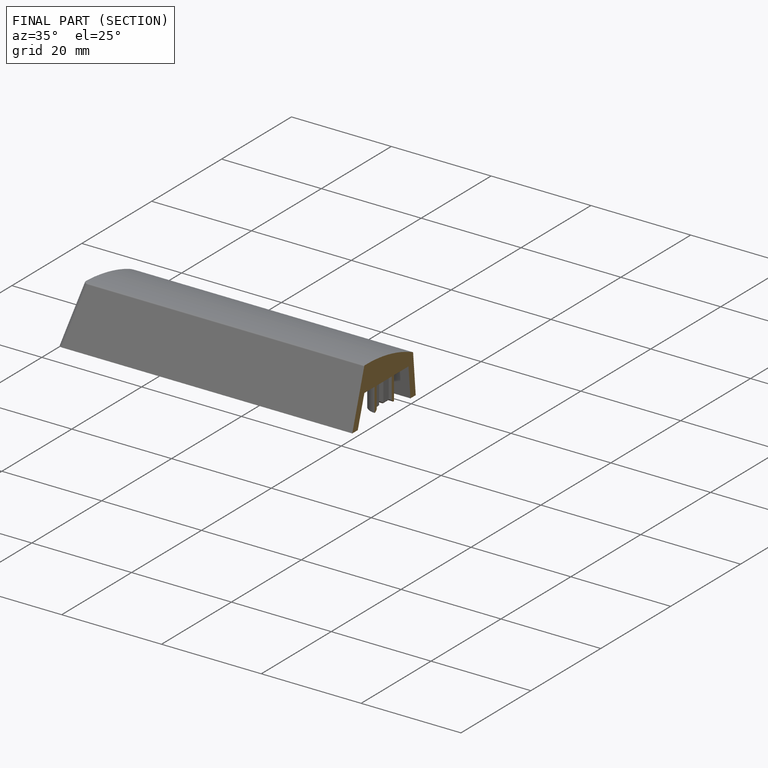
[diagram: finished part — half-section view (interior)]
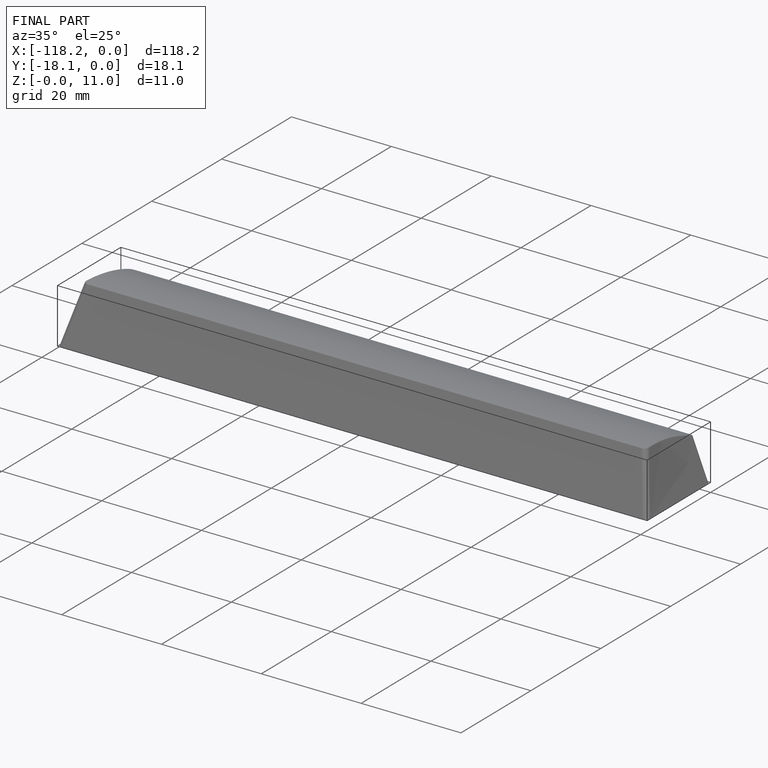
[diagram: finished part — iso view with bounding-box wireframe]
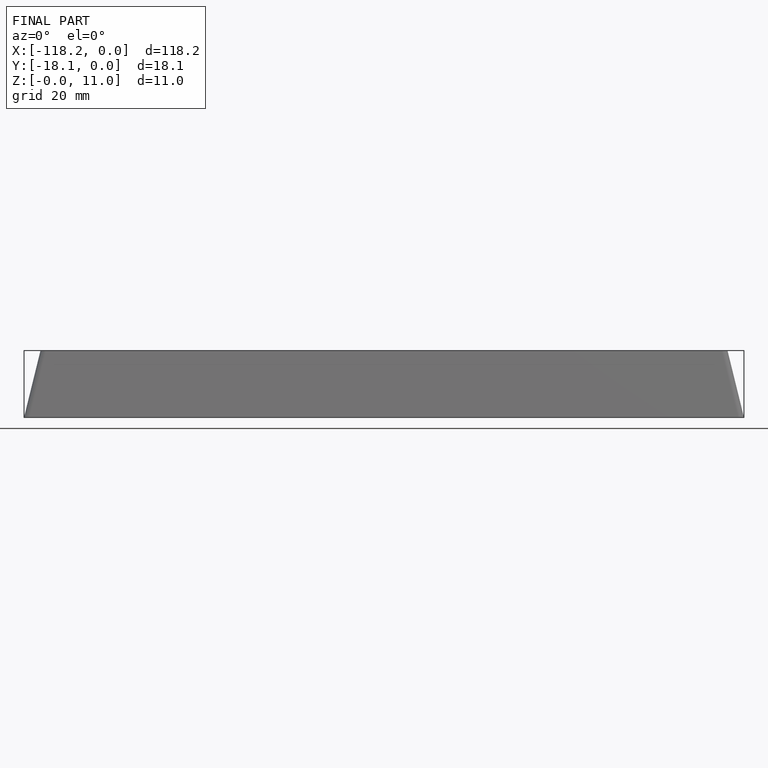
[diagram: finished part — front view with bounding-box wireframe]
